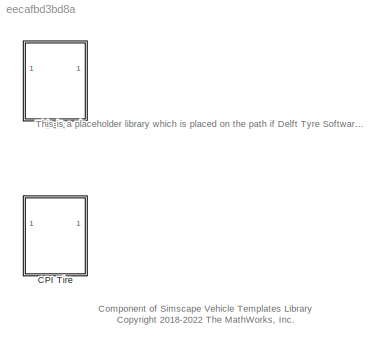
MODEL slx_eecafbd3bd8a
KIND library
CONFIG AbsTol = auto
CONFIG EnableMultiTasking = off
CONFIG FixedStep = auto
CONFIG MaxStep = auto
CONFIG MinStep = auto
CONFIG RelTol = 1e-3
CONFIG SampleTimeConstraint = Unconstrained
CONFIG SolverName = VariableStepAuto
CONFIG StartTime = 0.0
CONFIG StopTime = 10.0
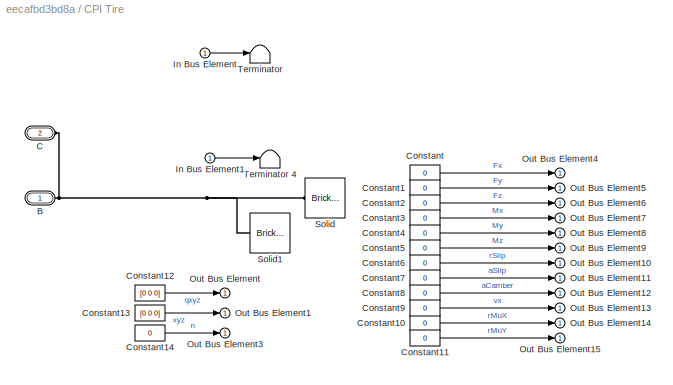
BLOCK [SubSystem] CPI Tire
  Ports = [1, 1, 0, 0, 0, 1, 1]
  RequestExecContextInheritance = off
  VariantControl = CPI
BLOCK [PMIOPort] CPI Tire/B
  Side = Right
BLOCK [PMIOPort] CPI Tire/C
  Port = 2
  Side = Left
BLOCK [Constant] CPI Tire/Constant
  Value = 0
BLOCK [Constant] CPI Tire/Constant1
  Value = 0
BLOCK [Constant] CPI Tire/Constant10
  Value = 0
BLOCK [Constant] CPI Tire/Constant11
  Value = 0
BLOCK [Constant] CPI Tire/Constant12
  Value = [0 0 0]
BLOCK [Constant] CPI Tire/Constant13
  Value = [0 0 0]
BLOCK [Constant] CPI Tire/Constant14
  Value = 0
BLOCK [Constant] CPI Tire/Constant2
  Value = 0
BLOCK [Constant] CPI Tire/Constant3
  Value = 0
BLOCK [Constant] CPI Tire/Constant4
  Value = 0
BLOCK [Constant] CPI Tire/Constant5
  Value = 0
BLOCK [Constant] CPI Tire/Constant6
  Value = 0
BLOCK [Constant] CPI Tire/Constant7
  Value = 0
BLOCK [Constant] CPI Tire/Constant8
  Value = 0
BLOCK [Constant] CPI Tire/Constant9
  Value = 0
BLOCK [Inport] CPI Tire/In Bus Element
BLOCK [Inport] CPI Tire/In Bus Element1
BLOCK [Outport] CPI Tire/Out Bus Element
  VectorParamsAs1DForOutWhenUnconnected = off
BLOCK [Outport] CPI Tire/Out Bus Element1
  VectorParamsAs1DForOutWhenUnconnected = off
BLOCK [Outport] CPI Tire/Out Bus Element10
  VectorParamsAs1DForOutWhenUnconnected = off
BLOCK [Outport] CPI Tire/Out Bus Element11
  VectorParamsAs1DForOutWhenUnconnected = off
BLOCK [Outport] CPI Tire/Out Bus Element12
  VectorParamsAs1DForOutWhenUnconnected = off
BLOCK [Outport] CPI Tire/Out Bus Element13
  VectorParamsAs1DForOutWhenUnconnected = off
BLOCK [Outport] CPI Tire/Out Bus Element14
  VectorParamsAs1DForOutWhenUnconnected = off
BLOCK [Outport] CPI Tire/Out Bus Element15
  VectorParamsAs1DForOutWhenUnconnected = off
BLOCK [Outport] CPI Tire/Out Bus Element3
  VectorParamsAs1DForOutWhenUnconnected = off
BLOCK [Outport] CPI Tire/Out Bus Element4
  VectorParamsAs1DForOutWhenUnconnected = off
BLOCK [Outport] CPI Tire/Out Bus Element5
  VectorParamsAs1DForOutWhenUnconnected = off
BLOCK [Outport] CPI Tire/Out Bus Element6
  VectorParamsAs1DForOutWhenUnconnected = off
BLOCK [Outport] CPI Tire/Out Bus Element7
  VectorParamsAs1DForOutWhenUnconnected = off
BLOCK [Outport] CPI Tire/Out Bus Element8
  VectorParamsAs1DForOutWhenUnconnected = off
BLOCK [Outport] CPI Tire/Out Bus Element9
  VectorParamsAs1DForOutWhenUnconnected = off
BLOCK [Reference] CPI Tire/Solid  REF=sm_lib/Body Elements/Brick Solid
  NameLocation = top
  Ports = [0, 0, 0, 0, 0, 0, 1]
  SourceBlock = sm_lib/Body Elements/Brick Solid
  SourceProductBaseCode = MS
  SourceType = Brick Solid
BLOCK [Reference] CPI Tire/Solid1  REF=sm_lib/Body Elements/Brick Solid
  NameLocation = top
  Ports = [0, 0, 0, 0, 0, 0, 1]
  SourceBlock = sm_lib/Body Elements/Brick Solid
  SourceProductBaseCode = MS
  SourceType = Brick Solid
BLOCK [Terminator] CPI Tire/Terminator
BLOCK [Terminator] CPI Tire/Terminator 4
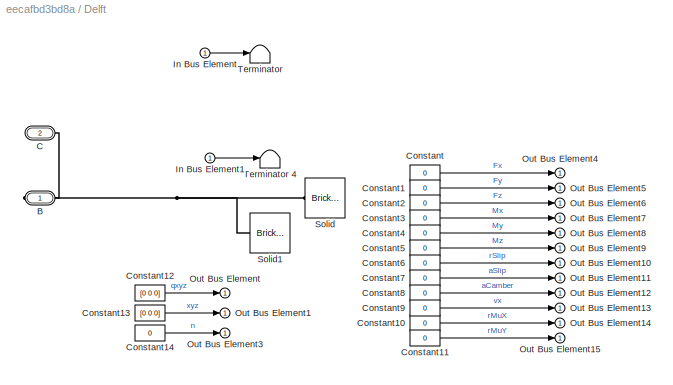
BLOCK [SubSystem] Delft
  Ports = [1, 1, 0, 0, 0, 1, 1]
  RequestExecContextInheritance = off
  VariantControl = Delft
BLOCK [PMIOPort] Delft/B
  Side = Right
BLOCK [PMIOPort] Delft/C
  Port = 2
  Side = Left
BLOCK [Constant] Delft/Constant
  Value = 0
BLOCK [Constant] Delft/Constant1
  Value = 0
BLOCK [Constant] Delft/Constant10
  Value = 0
BLOCK [Constant] Delft/Constant11
  Value = 0
BLOCK [Constant] Delft/Constant12
  Value = [0 0 0]
BLOCK [Constant] Delft/Constant13
  Value = [0 0 0]
BLOCK [Constant] Delft/Constant14
  Value = 0
BLOCK [Constant] Delft/Constant2
  Value = 0
BLOCK [Constant] Delft/Constant3
  Value = 0
BLOCK [Constant] Delft/Constant4
  Value = 0
BLOCK [Constant] Delft/Constant5
  Value = 0
BLOCK [Constant] Delft/Constant6
  Value = 0
BLOCK [Constant] Delft/Constant7
  Value = 0
BLOCK [Constant] Delft/Constant8
  Value = 0
BLOCK [Constant] Delft/Constant9
  Value = 0
BLOCK [Inport] Delft/In Bus Element
BLOCK [Inport] Delft/In Bus Element1
BLOCK [Outport] Delft/Out Bus Element
  VectorParamsAs1DForOutWhenUnconnected = off
BLOCK [Outport] Delft/Out Bus Element1
  VectorParamsAs1DForOutWhenUnconnected = off
BLOCK [Outport] Delft/Out Bus Element10
  VectorParamsAs1DForOutWhenUnconnected = off
BLOCK [Outport] Delft/Out Bus Element11
  VectorParamsAs1DForOutWhenUnconnected = off
BLOCK [Outport] Delft/Out Bus Element12
  VectorParamsAs1DForOutWhenUnconnected = off
BLOCK [Outport] Delft/Out Bus Element13
  VectorParamsAs1DForOutWhenUnconnected = off
BLOCK [Outport] Delft/Out Bus Element14
  VectorParamsAs1DForOutWhenUnconnected = off
BLOCK [Outport] Delft/Out Bus Element15
  VectorParamsAs1DForOutWhenUnconnected = off
BLOCK [Outport] Delft/Out Bus Element3
  VectorParamsAs1DForOutWhenUnconnected = off
BLOCK [Outport] Delft/Out Bus Element4
  VectorParamsAs1DForOutWhenUnconnected = off
BLOCK [Outport] Delft/Out Bus Element5
  VectorParamsAs1DForOutWhenUnconnected = off
BLOCK [Outport] Delft/Out Bus Element6
  VectorParamsAs1DForOutWhenUnconnected = off
BLOCK [Outport] Delft/Out Bus Element7
  VectorParamsAs1DForOutWhenUnconnected = off
BLOCK [Outport] Delft/Out Bus Element8
  VectorParamsAs1DForOutWhenUnconnected = off
BLOCK [Outport] Delft/Out Bus Element9
  VectorParamsAs1DForOutWhenUnconnected = off
BLOCK [Reference] Delft/Solid  REF=sm_lib/Body Elements/Brick Solid
  NameLocation = top
  Ports = [0, 0, 0, 0, 0, 0, 1]
  SourceBlock = sm_lib/Body Elements/Brick Solid
  SourceProductBaseCode = MS
  SourceType = Brick Solid
BLOCK [Reference] Delft/Solid1  REF=sm_lib/Body Elements/Brick Solid
  NameLocation = top
  Ports = [0, 0, 0, 0, 0, 0, 1]
  SourceBlock = sm_lib/Body Elements/Brick Solid
  SourceProductBaseCode = MS
  SourceType = Brick Solid
BLOCK [Terminator] Delft/Terminator
BLOCK [Terminator] Delft/Terminator 4
ANNOTATION (root): This is a placeholder library which is placed on the path if Delft Tyre Software is not found.
ANNOTATION (root): Component of Simscape Vehicle Templates Library <copyright redacted>
LINE CPI Tire/Constant10:1 -> CPI Tire/Out Bus Element14:1
LINE CPI Tire/Constant11:1 -> CPI Tire/Out Bus Element15:1
LINE CPI Tire/Constant12:1 -> CPI Tire/Out Bus Element:1
LINE CPI Tire/Constant13:1 -> CPI Tire/Out Bus Element1:1
LINE CPI Tire/Constant14:1 -> CPI Tire/Out Bus Element3:1
LINE CPI Tire/Constant1:1 -> CPI Tire/Out Bus Element5:1
LINE CPI Tire/Constant2:1 -> CPI Tire/Out Bus Element6:1
LINE CPI Tire/Constant3:1 -> CPI Tire/Out Bus Element7:1
LINE CPI Tire/Constant4:1 -> CPI Tire/Out Bus Element8:1
LINE CPI Tire/Constant5:1 -> CPI Tire/Out Bus Element9:1
LINE CPI Tire/Constant6:1 -> CPI Tire/Out Bus Element10:1
LINE CPI Tire/Constant7:1 -> CPI Tire/Out Bus Element11:1
LINE CPI Tire/Constant8:1 -> CPI Tire/Out Bus Element12:1
LINE CPI Tire/Constant9:1 -> CPI Tire/Out Bus Element13:1
LINE CPI Tire/Constant:1 -> CPI Tire/Out Bus Element4:1
LINE CPI Tire/In Bus Element1:1 -> CPI Tire/Terminator 4:1
LINE CPI Tire/In Bus Element:1 -> CPI Tire/Terminator:1
PNET net1: CPI Tire/B:RConn1 -- CPI Tire/C:RConn1 -- CPI Tire/Solid1:RConn1 -- CPI Tire/Solid:RConn1
note: PNET lines group multi-terminal physical nets as a canonical sorted terminal list (undirected conserving connections); 2-terminal nets keep the pairwise PLINE form
